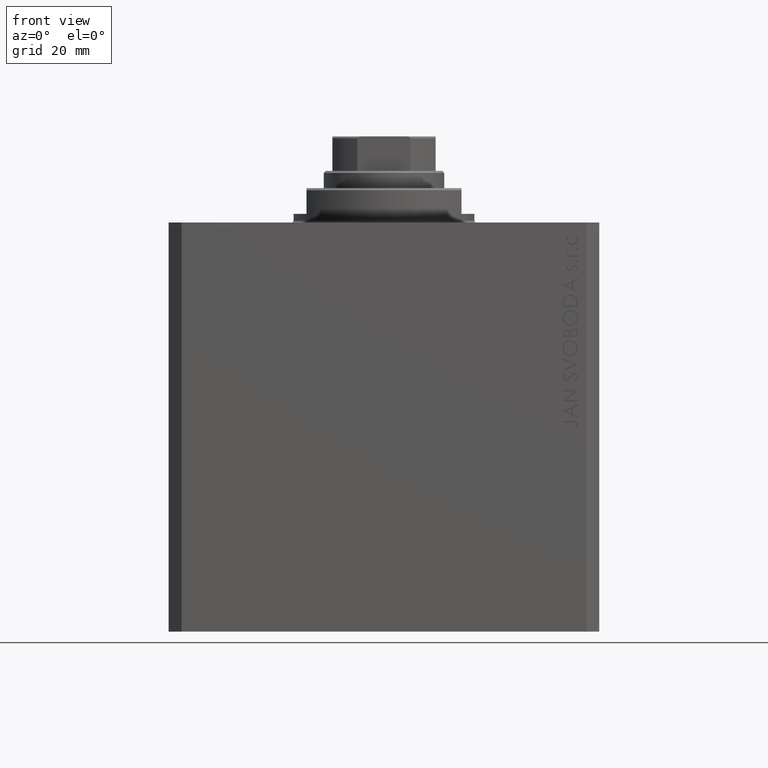
[diagram: clean part render]
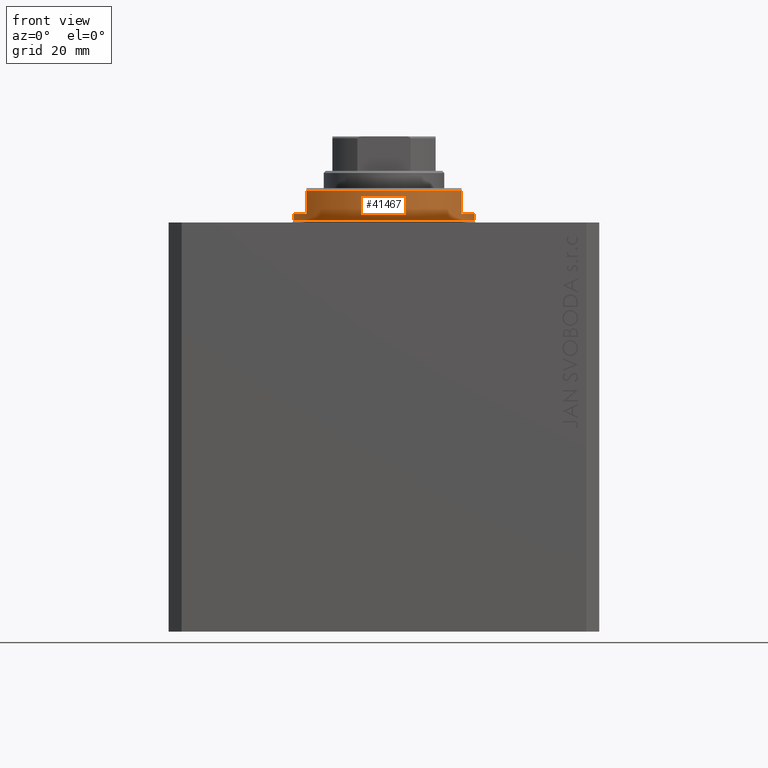
[diagram: same view with one face highlighted and labeled with its STEP entity id]
A machine part, front view. The second image highlights one B-rep face of the part: STEP entity #41467.
In plain terms, the highlighted cylindrical surface (partial cylindrical patch) has radius 21 mm, axis along (0, 0, -1).
Its self-contained STEP definition (entity closure, byte-faithful):
#883 = CARTESIAN_POINT ( 'NONE',  ( 0.000000000000000000, 0.000000000000000000, -8.000000000000000000 ) ) ;
#984 = DIRECTION ( 'NONE',  ( 0.000000000000000000, 0.000000000000000000, -1.000000000000000000 ) ) ;
#1012 = EDGE_CURVE ( 'NONE', #19993, #42608, #6184, .T. ) ;
#2425 = CARTESIAN_POINT ( 'NONE',  ( -21.00000000000000000, 2.571758278209441661E-15, -0.5000000000000004441 ) ) ;
#2463 = VECTOR ( 'NONE', #984, 1000.000000000000000 ) ;
#2653 = VERTEX_POINT ( 'NONE', #6381 ) ;
#2654 = EDGE_CURVE ( 'NONE', #2653, #42550, #15442, .T. ) ;
#3662 = DIRECTION ( 'NONE',  ( -1.000000000000000000, 0.000000000000000000, 0.000000000000000000 ) ) ;
#4011 = AXIS2_PLACEMENT_3D ( 'NONE', #20068, #34231, #29980 ) ;
#4154 = VERTEX_POINT ( 'NONE', #2425 ) ;
#5087 = EDGE_CURVE ( 'NONE', #17490, #25554, #40696, .T. ) ;
#5603 = LINE ( 'NONE', #6051, #14448 ) ;
#5832 = DIRECTION ( 'NONE',  ( -0.000000000000000000, -0.000000000000000000, 1.000000000000000000 ) ) ;
#5860 = ORIENTED_EDGE ( 'NONE', *, *, #22084, .T. ) ;
#6051 = CARTESIAN_POINT ( 'NONE',  ( 21.00000000000000000, 0.000000000000000000, -8.000000000000000000 ) ) ;
#6184 = CIRCLE ( 'NONE', #4011, 21.00000000000000000 ) ;
#6381 = CARTESIAN_POINT ( 'NONE',  ( -18.00000000000000000, -10.81665382639197048, -2.000000000000000000 ) ) ;
#7228 = DIRECTION ( 'NONE',  ( 0.000000000000000000, 0.000000000000000000, -1.000000000000000000 ) ) ;
#7414 = CYLINDRICAL_SURFACE ( 'NONE', #40536, 21.00000000000000000 ) ;
#8918 = VERTEX_POINT ( 'NONE', #26451 ) ;
#9163 = CARTESIAN_POINT ( 'NONE',  ( -21.00000000000000000, 2.571758278209441661E-15, -8.000000000000000000 ) ) ;
#9174 = DIRECTION ( 'NONE',  ( 1.000000000000000000, 0.000000000000000000, 0.000000000000000000 ) ) ;
#9838 = AXIS2_PLACEMENT_3D ( 'NONE', #20926, #7228, #34655 ) ;
#11009 = FACE_OUTER_BOUND ( 'NONE', #32724, .T. ) ;
#11107 = LINE ( 'NONE', #42123, #2463 ) ;
#11957 = ORIENTED_EDGE ( 'NONE', *, *, #38041, .F. ) ;
#12326 = CARTESIAN_POINT ( 'NONE',  ( 0.000000000000000000, 0.000000000000000000, -0.5000000000000004441 ) ) ;
#14448 = VECTOR ( 'NONE', #5832, 1000.000000000000000 ) ;
#15442 = CIRCLE ( 'NONE', #40559, 21.00000000000000000 ) ;
#16853 = VECTOR ( 'NONE', #24048, 1000.000000000000000 ) ;
#17490 = VERTEX_POINT ( 'NONE', #22898 ) ;
#17970 = DIRECTION ( 'NONE',  ( 1.000000000000000000, 0.000000000000000000, 0.000000000000000000 ) ) ;
#19993 = VERTEX_POINT ( 'NONE', #25251 ) ;
#20068 = CARTESIAN_POINT ( 'NONE',  ( 0.000000000000000000, 0.000000000000000000, -7.500000000000016875 ) ) ;
#20118 = AXIS2_PLACEMENT_3D ( 'NONE', #12326, #39286, #9174 ) ;
#20703 = ORIENTED_EDGE ( 'NONE', *, *, #42283, .T. ) ;
#20926 = CARTESIAN_POINT ( 'NONE',  ( 0.000000000000000000, 0.000000000000000000, -2.000000000000000000 ) ) ;
#21713 = ORIENTED_EDGE ( 'NONE', *, *, #39936, .F. ) ;
#22003 = DIRECTION ( 'NONE',  ( -0.000000000000000000, -0.000000000000000000, 1.000000000000000000 ) ) ;
#22084 = EDGE_CURVE ( 'NONE', #17490, #8918, #5603, .T. ) ;
#22486 = VECTOR ( 'NONE', #40172, 1000.000000000000000 ) ;
#22898 = CARTESIAN_POINT ( 'NONE',  ( 21.00000000000000000, 0.000000000000000000, -2.000000000000000000 ) ) ;
#24048 = DIRECTION ( 'NONE',  ( 0.000000000000000000, 0.000000000000000000, -1.000000000000000000 ) ) ;
#24114 = DIRECTION ( 'NONE',  ( 0.000000000000000000, 0.000000000000000000, -1.000000000000000000 ) ) ;
#25251 = CARTESIAN_POINT ( 'NONE',  ( -18.00000000000000000, -10.81665382639197048, -7.500000000000017764 ) ) ;
#25554 = VERTEX_POINT ( 'NONE', #30740 ) ;
#26224 = CARTESIAN_POINT ( 'NONE',  ( 18.00000000000000000, -10.81665382639197048, -7.500000000000016875 ) ) ;
#26451 = CARTESIAN_POINT ( 'NONE',  ( 21.00000000000000000, 0.000000000000000000, -0.5000000000000004441 ) ) ;
#26784 = EDGE_CURVE ( 'NONE', #8918, #4154, #38087, .T. ) ;
#29980 = DIRECTION ( 'NONE',  ( -1.000000000000000000, 0.000000000000000000, 0.000000000000000000 ) ) ;
#30587 = LINE ( 'NONE', #37323, #16853 ) ;
#30740 = CARTESIAN_POINT ( 'NONE',  ( 18.00000000000000000, -10.81665382639197048, -2.000000000000000000 ) ) ;
#31886 = ORIENTED_EDGE ( 'NONE', *, *, #5087, .F. ) ;
#32724 = EDGE_LOOP ( 'NONE', ( #11957, #35361, #20703, #43198, #21713, #31886, #5860, #39628 ) ) ;
#34231 = DIRECTION ( 'NONE',  ( 0.000000000000000000, 0.000000000000000000, 1.000000000000000000 ) ) ;
#34655 = DIRECTION ( 'NONE',  ( -1.000000000000000000, 0.000000000000000000, 0.000000000000000000 ) ) ;
#35361 = ORIENTED_EDGE ( 'NONE', *, *, #2654, .F. ) ;
#37323 = CARTESIAN_POINT ( 'NONE',  ( -18.00000000000000000, -10.81665382639197048, -8.000000000000000000 ) ) ;
#38041 = EDGE_CURVE ( 'NONE', #42550, #4154, #39957, .T. ) ;
#38087 = CIRCLE ( 'NONE', #20118, 21.00000000000000000 ) ;
#39286 = DIRECTION ( 'NONE',  ( -0.000000000000000000, -0.000000000000000000, -1.000000000000000000 ) ) ;
#39628 = ORIENTED_EDGE ( 'NONE', *, *, #26784, .T. ) ;
#39936 = EDGE_CURVE ( 'NONE', #25554, #42608, #11107, .T. ) ;
#39957 = LINE ( 'NONE', #9163, #22486 ) ;
#40172 = DIRECTION ( 'NONE',  ( -0.000000000000000000, -0.000000000000000000, 1.000000000000000000 ) ) ;
#40536 = AXIS2_PLACEMENT_3D ( 'NONE', #883, #22003, #17970 ) ;
#40559 = AXIS2_PLACEMENT_3D ( 'NONE', #44352, #24114, #3662 ) ;
#40696 = CIRCLE ( 'NONE', #9838, 21.00000000000000000 ) ;
#41467 = ADVANCED_FACE ( 'NONE', ( #11009 ), #7414, .T. ) ;
#42123 = CARTESIAN_POINT ( 'NONE',  ( 18.00000000000000000, -10.81665382639197048, -8.000000000000000000 ) ) ;
#42283 = EDGE_CURVE ( 'NONE', #2653, #19993, #30587, .T. ) ;
#42550 = VERTEX_POINT ( 'NONE', #42858 ) ;
#42608 = VERTEX_POINT ( 'NONE', #26224 ) ;
#42858 = CARTESIAN_POINT ( 'NONE',  ( -21.00000000000000000, 2.571758278209441661E-15, -2.000000000000000000 ) ) ;
#43198 = ORIENTED_EDGE ( 'NONE', *, *, #1012, .T. ) ;
#44352 = CARTESIAN_POINT ( 'NONE',  ( 0.000000000000000000, 0.000000000000000000, -2.000000000000000000 ) ) ;